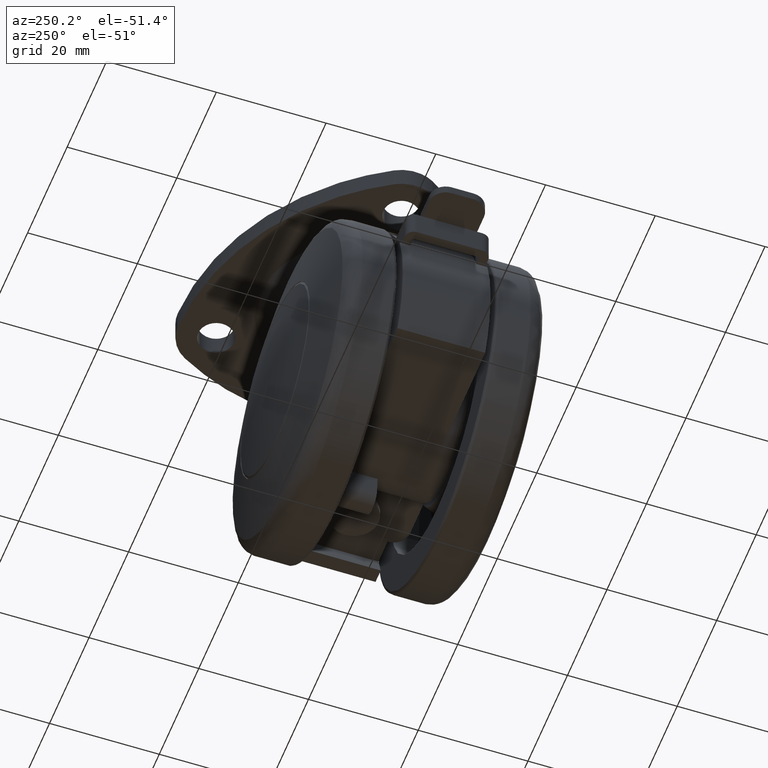
[diagram: clean part render]
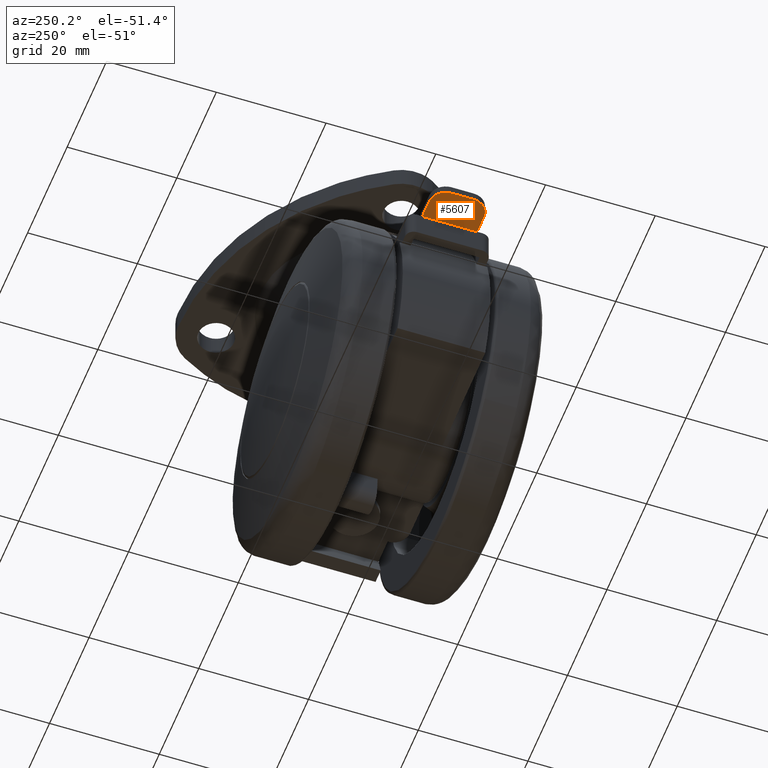
[diagram: same view with one face highlighted and labeled with its STEP entity id]
A machine part, auxiliary view. The second image highlights one B-rep face of the part: STEP entity #5607.
In plain terms, the highlighted face is a freeform B-spline surface patch.
Its self-contained STEP definition (entity closure, byte-faithful):
#5395=CARTESIAN_POINT('',(-38.0,-2.0,14.500000000000000));
#5396=VERTEX_POINT('',#5395);
#5402=CARTESIAN_POINT('',(-35.0,-5.0,14.500000000000000));
#5403=VERTEX_POINT('',#5402);
#5404=CARTESIAN_POINT('',(-35.0,-5.0,14.500000000000000));
#5405=CARTESIAN_POINT('',(-38.0,-5.000000000000001,14.500000000000000));
#5406=CARTESIAN_POINT('',(-38.000000000000007,-2.0,14.500000000000000));
#5414=(BOUNDED_CURVE()B_SPLINE_CURVE(2,(#5404,#5405,#5406),.UNSPECIFIED.,.F.,.U.)CURVE()GEOMETRIC_REPRESENTATION_ITEM()QUASI_UNIFORM_CURVE()RATIONAL_B_SPLINE_CURVE((1.0,0.707106781186548,1.0))REPRESENTATION_ITEM(''));
#5415=EDGE_CURVE('',#5403,#5396,#5414,.T.);
#5456=CARTESIAN_POINT('',(-35.0,5.0,14.500000000000000));
#5457=VERTEX_POINT('',#5456);
#5463=CARTESIAN_POINT('',(-38.0,2.0,14.500000000000000));
#5464=VERTEX_POINT('',#5463);
#5465=CARTESIAN_POINT('',(-38.000000000000007,2.0,14.500000000000000));
#5466=CARTESIAN_POINT('',(-38.0,5.000000000000001,14.500000000000000));
#5467=CARTESIAN_POINT('',(-35.0,5.0,14.500000000000000));
#5475=(BOUNDED_CURVE()B_SPLINE_CURVE(2,(#5465,#5466,#5467),.UNSPECIFIED.,.F.,.U.)CURVE()GEOMETRIC_REPRESENTATION_ITEM()QUASI_UNIFORM_CURVE()RATIONAL_B_SPLINE_CURVE((1.0,0.707106781186548,1.0))REPRESENTATION_ITEM(''));
#5476=EDGE_CURVE('',#5464,#5457,#5475,.T.);
#5491=CARTESIAN_POINT('',(-31.500000000000000,5.0,14.500000000000000));
#5492=VERTEX_POINT('',#5491);
#5493=CARTESIAN_POINT('',(-35.0,5.0,14.500000000000000));
#5494=CARTESIAN_POINT('',(-31.500000000000000,5.0,14.500000000000000));
#5495=QUASI_UNIFORM_CURVE('',1,(#5493,#5494),.UNSPECIFIED.,.F.,.U.);
#5496=EDGE_CURVE('',#5457,#5492,#5495,.T.);
#5549=CARTESIAN_POINT('',(-31.500000000000000,-5.0,14.500000000000000));
#5550=VERTEX_POINT('',#5549);
#5551=CARTESIAN_POINT('',(-35.0,-5.0,14.500000000000000));
#5552=CARTESIAN_POINT('',(-31.500000000000000,-5.0,14.500000000000000));
#5553=QUASI_UNIFORM_CURVE('',1,(#5551,#5552),.UNSPECIFIED.,.F.,.U.);
#5554=EDGE_CURVE('',#5403,#5550,#5553,.T.);
#5586=CARTESIAN_POINT('',(-38.324674987401742,-5.499499980618059,14.500000000000000));
#5587=CARTESIAN_POINT('',(-31.175324838254671,-5.499499980618059,14.500000000000000));
#5588=CARTESIAN_POINT('',(-38.324674987401742,5.499500248838960,14.500000000000000));
#5589=CARTESIAN_POINT('',(-31.175324838254671,5.499500248838960,14.500000000000000));
#5590=B_SPLINE_SURFACE_WITH_KNOTS('',1,1,((#5586,#5588),(#5587,#5589)),.UNSPECIFIED.,.F.,.F.,.U.,(2,2),(2,2),(0.0,7.149350149147065),(0.0,10.999000229457019),.UNSPECIFIED.);
#5591=CARTESIAN_POINT('',(-38.0,-2.0,14.500000000000000));
#5592=CARTESIAN_POINT('',(-38.0,2.0,14.500000000000000));
#5593=QUASI_UNIFORM_CURVE('',1,(#5591,#5592),.UNSPECIFIED.,.F.,.U.);
#5594=EDGE_CURVE('',#5396,#5464,#5593,.T.);
#5595=ORIENTED_EDGE('',*,*,#5594,.T.);
#5596=ORIENTED_EDGE('',*,*,#5476,.T.);
#5597=ORIENTED_EDGE('',*,*,#5496,.T.);
#5598=CARTESIAN_POINT('',(-31.500000000000000,-5.0,14.500000000000000));
#5599=CARTESIAN_POINT('',(-31.500000000000000,5.0,14.500000000000000));
#5600=QUASI_UNIFORM_CURVE('',1,(#5598,#5599),.UNSPECIFIED.,.F.,.U.);
#5601=EDGE_CURVE('',#5550,#5492,#5600,.T.);
#5602=ORIENTED_EDGE('',*,*,#5601,.F.);
#5603=ORIENTED_EDGE('',*,*,#5554,.F.);
#5604=ORIENTED_EDGE('',*,*,#5415,.T.);
#5605=EDGE_LOOP('',(#5595,#5596,#5597,#5602,#5603,#5604));
#5606=FACE_OUTER_BOUND('',#5605,.T.);
#5607=ADVANCED_FACE('',(#5606),#5590,.F.);